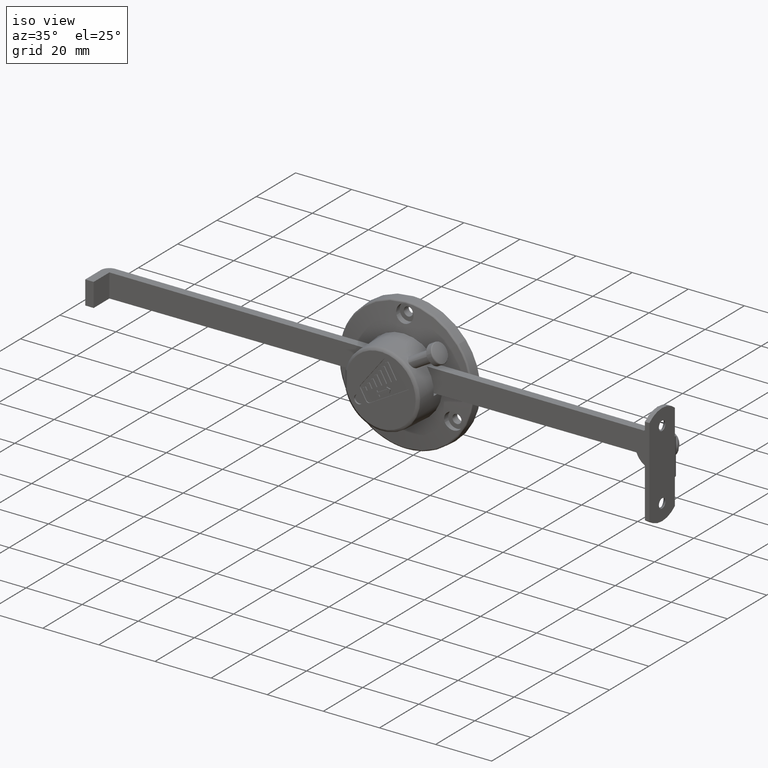
[diagram: clean part render]
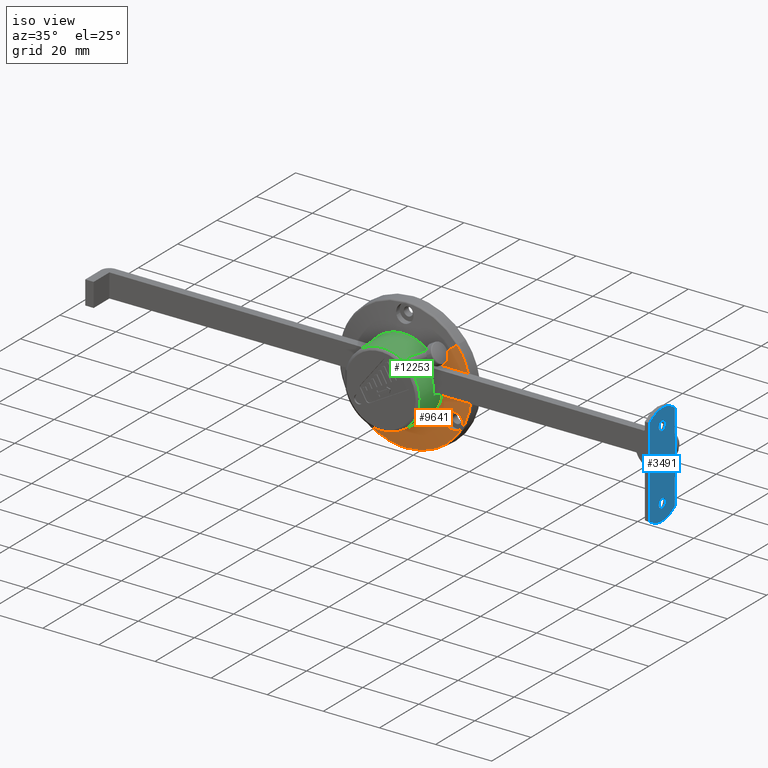
[diagram: same view with three faces highlighted in distinct colors, each labeled with its STEP entity id]
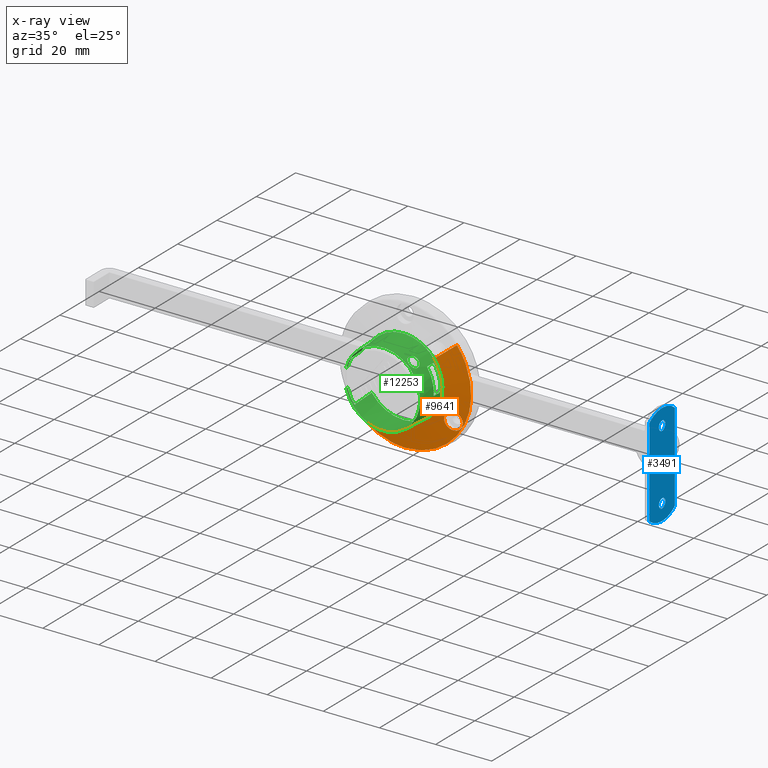
[diagram: x-ray of the same camera — body ghosted, the three highlighted faces saturated]
A machine part, iso view with three faces highlighted in distinct colors.
The next image is the same camera in x-ray (body ghosted, the three faces saturated) — at least one of them is partly hidden behind the body in this view.
Their STEP definitions:

[orange] entity #9641 — the highlighted face is a freeform B-spline surface patch.
#7931=CARTESIAN_POINT('',(18.299272881391150,-3.874858140116030,14.555898898998050));
#7932=VERTEX_POINT('',#7931);
#7946=CARTESIAN_POINT('',(23.352887390695852,-3.874858132988049,-1.174833772036147));
#7947=VERTEX_POINT('',#7946);
#7948=CARTESIAN_POINT('',(23.352887390695848,-3.874858132988049,-1.174833772036147));
#7949=CARTESIAN_POINT('',(23.382420400872537,-3.874858133187921,-0.587788089782845));
#7950=CARTESIAN_POINT('',(23.382420399422919,-3.874858133397013,-5.667377E-009));
#7951=CARTESIAN_POINT('',(23.382420379284948,-3.874858136301691,8.165506730892659));
#7952=CARTESIAN_POINT('',(18.299272881391147,-3.874858140116030,14.555898898998041));
#7960=(BOUNDED_CURVE()B_SPLINE_CURVE(2,(#7948,#7949,#7950,#7951,#7952),.UNSPECIFIED.,.F.,.U.)B_SPLINE_CURVE_WITH_KNOTS((3,2,3),(0.741203951710024,0.750000000000000,0.857863877670425),.UNSPECIFIED.)CURVE()GEOMETRIC_REPRESENTATION_ITEM()RATIONAL_B_SPLINE_CURVE((0.980114737938071,0.989694788414041,1.0,0.873629606701634,0.856305618554457))REPRESENTATION_ITEM(''));
#7961=EDGE_CURVE('',#7947,#7932,#7960,.T.);
#8014=CARTESIAN_POINT('',(-1.136868E-013,-3.874858147016895,-23.382420286659439));
#8015=VERTEX_POINT('',#8014);
#8016=CARTESIAN_POINT('',(-1.136868E-013,-3.874858147016895,-23.382420286659439));
#8017=CARTESIAN_POINT('',(22.235671195848774,-3.874858140002472,-23.382420289567030));
#8018=CARTESIAN_POINT('',(23.352887390695848,-3.874858132988049,-1.174833772036147));
#8026=(BOUNDED_CURVE()B_SPLINE_CURVE(2,(#8016,#8017,#8018),.UNSPECIFIED.,.F.,.U.)B_SPLINE_CURVE_WITH_KNOTS((3,3),(0.500000000000000,0.741203951710024),.UNSPECIFIED.)CURVE()GEOMETRIC_REPRESENTATION_ITEM()RATIONAL_B_SPLINE_CURVE((1.0,0.717411992772506,0.980114737938071))REPRESENTATION_ITEM(''));
#8027=EDGE_CURVE('',#8015,#7947,#8026,.T.);
#8029=CARTESIAN_POINT('',(-18.299272881391349,-3.874858140116030,-14.555898898997970));
#8030=VERTEX_POINT('',#8029);
#8031=CARTESIAN_POINT('',(-18.299272881391349,-3.874858140116030,-14.555898898997972));
#8032=CARTESIAN_POINT('',(-11.278340688014520,-3.874858144283117,-23.382420285363992));
#8033=CARTESIAN_POINT('',(-1.136868E-013,-3.874858147016895,-23.382420286659439));
#8041=(BOUNDED_CURVE()B_SPLINE_CURVE(2,(#8031,#8032,#8033),.UNSPECIFIED.,.F.,.U.)B_SPLINE_CURVE_WITH_KNOTS((3,3),(0.357863877670426,0.500000000000000),.UNSPECIFIED.)CURVE()GEOMETRIC_REPRESENTATION_ITEM()RATIONAL_B_SPLINE_CURVE((0.856305618554456,0.833477174484913,1.0))REPRESENTATION_ITEM(''));
#8042=EDGE_CURVE('',#8030,#8015,#8041,.T.);
#8900=CARTESIAN_POINT('',(14.431088293362830,-4.500571606496708,-11.123061222129820));
#8901=VERTEX_POINT('',#8900);
#8907=CARTESIAN_POINT('',(19.502574634162180,-3.920585017414080,-12.201950393274309));
#8908=VERTEX_POINT('',#8907);
#8909=CARTESIAN_POINT('',(14.431088293362830,-4.500571606496708,-11.123061222129820));
#8910=CARTESIAN_POINT('',(14.438086775236989,-4.498567821271893,-11.141059975570929));
#8911=CARTESIAN_POINT('',(14.445258270695881,-4.496550195450925,-11.159008061743251));
#8912=CARTESIAN_POINT('',(14.491106425207400,-4.483869511903593,-11.270731778925271));
#8913=CARTESIAN_POINT('',(14.534668619765370,-4.472780992338392,-11.363593824822800));
#8914=CARTESIAN_POINT('',(14.629833545005960,-4.450284211378511,-11.542906540077190));
#8915=CARTESIAN_POINT('',(14.681504144085430,-4.438847302672460,-11.629658418892520));
#8916=CARTESIAN_POINT('',(14.848494088116540,-4.404014423641175,-11.881408292320019));
#8917=CARTESIAN_POINT('',(14.975675098708400,-4.380103657438899,-12.037983562033769));
#8918=CARTESIAN_POINT('',(15.263013487985051,-4.330947316508679,-12.327731960950709));
#8919=CARTESIAN_POINT('',(15.418511653127670,-4.306499763204070,-12.456194772458829));
#8920=CARTESIAN_POINT('',(15.668631722232901,-4.270044051558249,-12.625151420419000));
#8921=CARTESIAN_POINT('',(15.754845846796909,-4.257926330014630,-12.677492695705730));
#8922=CARTESIAN_POINT('',(15.933081256589711,-4.233753902161966,-12.774042703764421));
#8923=CARTESIAN_POINT('',(16.025474054527781,-4.221655836216594,-12.818358840515179));
#8924=CARTESIAN_POINT('',(16.305668097000929,-4.186199460076757,-12.936180765184639));
#8925=CARTESIAN_POINT('',(16.498027593282352,-4.163447185211189,-12.995718375736940));
#8926=CARTESIAN_POINT('',(16.794823825492472,-4.130537341126605,-13.056771920459180));
#8927=CARTESIAN_POINT('',(16.895302644547439,-4.119754953320412,-13.072398111440179));
#8928=CARTESIAN_POINT('',(17.098467924256010,-4.098663727565510,-13.093724059788910));
#8929=CARTESIAN_POINT('',(17.199778133910410,-4.088496504431221,-13.099295532009370));
#8930=CARTESIAN_POINT('',(17.502914460054029,-4.059061954574640,-13.101220555642620));
#8931=CARTESIAN_POINT('',(17.703953803945360,-4.040852393374965,-13.082923750286049));
#8932=CARTESIAN_POINT('',(18.003887713771530,-4.015570982275603,-13.025451106549900));
#8933=CARTESIAN_POINT('',(18.103820515509359,-4.007471045647740,-13.001125630393689));
#8934=CARTESIAN_POINT('',(18.298752046319610,-3.992293535384749,-12.943360729381389));
#8935=CARTESIAN_POINT('',(18.489835746032071,-3.978043288209365,-12.876331291304121));
#8936=CARTESIAN_POINT('',(18.673348405962710,-3.965576613050713,-12.791079666587750));
#8937=CARTESIAN_POINT('',(18.808108251151928,-3.956889577843859,-12.720224537772861));
#8938=CARTESIAN_POINT('',(18.852548243295399,-3.954104605419764,-12.695451383722020));
#8939=CARTESIAN_POINT('',(18.940451702487540,-3.948757698300635,-12.643555918285820));
#8940=CARTESIAN_POINT('',(18.984011052196308,-3.946190386118030,-12.616368824739840));
#8941=CARTESIAN_POINT('',(19.198000377276180,-3.933993600092465,-12.475291335145110));
#8942=CARTESIAN_POINT('',(19.356616027186870,-3.926284244382365,-12.346591005024990));
#8943=CARTESIAN_POINT('',(19.502574634162180,-3.920585017414080,-12.201950393274309));
#8944=B_SPLINE_CURVE_WITH_KNOTS('',3,(#8909,#8910,#8911,#8912,#8913,#8914,#8915,#8916,#8917,#8918,#8919,#8920,#8921,#8922,#8923,#8924,#8925,#8926,#8927,#8928,#8929,#8930,#8931,#8932,#8933,#8934,#8935,#8936,#8937,#8938,#8939,#8940,#8941,#8942,#8943),.UNSPECIFIED.,.F.,.U.,(4,2,2,2,2,2,2,2,2,2,2,2,2,1,2,2,2,4),(0.684519524175808,0.687500000000020,0.703125000000019,0.718750000000019,0.750000000000017,0.781250000000016,0.796875000000015,0.812500000000015,0.843750000000012,0.859375000000011,0.875000000000010,0.906250000000007,0.921875000000006,0.937500000000005,0.953125000000003,0.960937500000003,0.968750000000002,1.0),.UNSPECIFIED.);
#8945=EDGE_CURVE('',#8901,#8908,#8944,.T.);
#8947=CARTESIAN_POINT('',(20.209926327969249,-4.033510248172043,-8.876939372908845));
#8948=VERTEX_POINT('',#8947);
#8949=CARTESIAN_POINT('',(19.502574634162180,-3.920585017414080,-12.201950393274309));
#8950=CARTESIAN_POINT('',(19.648533261108039,-3.914885790445869,-12.057309773755600));
#8951=CARTESIAN_POINT('',(19.777834614097291,-3.911352451607674,-11.900696080904179));
#8952=CARTESIAN_POINT('',(19.947792813222950,-3.909136971632206,-11.648529478250170));
#8953=CARTESIAN_POINT('',(20.000416726885220,-3.908916882595973,-11.561578140415021));
#8954=CARTESIAN_POINT('',(20.073165695817838,-3.909382288179299,-11.426704167491360));
#8955=CARTESIAN_POINT('',(20.096432290505390,-3.909671328550475,-11.380897178597881));
#8956=CARTESIAN_POINT('',(20.140612167048911,-3.910516612709154,-11.288272136187810));
#8957=CARTESIAN_POINT('',(20.161464014977401,-3.911070879746978,-11.241598164105080));
#8958=CARTESIAN_POINT('',(20.259657544921300,-3.914488242094064,-11.006457496818481));
#8959=CARTESIAN_POINT('',(20.318975904868299,-3.919268798280095,-10.812729067296001));
#8960=CARTESIAN_POINT('',(20.369267158481311,-3.927822284798149,-10.563604824624161));
#8961=CARTESIAN_POINT('',(20.378121767096118,-3.929663159311615,-10.513428639276681));
#8962=CARTESIAN_POINT('',(20.393384226208038,-3.933611052301281,-10.412362111978609));
#8963=CARTESIAN_POINT('',(20.399803464973850,-3.935724595116878,-10.361329081592411));
#8964=CARTESIAN_POINT('',(20.415179916773621,-3.942413700262370,-10.208532708199440));
#8965=CARTESIAN_POINT('',(20.420318792723251,-3.947338548868202,-10.106945135218719));
#8966=CARTESIAN_POINT('',(20.420870392755969,-3.963489547957041,-9.802988276560500));
#8967=CARTESIAN_POINT('',(20.401559493425321,-3.976077478803051,-9.601417093647259));
#8968=CARTESIAN_POINT('',(20.352203858907220,-3.994241227059753,-9.350825624430138));
#8969=CARTESIAN_POINT('',(20.341034851430919,-3.998003140942178,-9.300701199778128));
#8970=CARTESIAN_POINT('',(20.316384889903741,-4.005694440863407,-9.201674980296666));
#8971=CARTESIAN_POINT('',(20.302883178191031,-4.009632598716347,-9.152646370436386));
#8972=CARTESIAN_POINT('',(20.265009281755269,-4.020046880680951,-9.027187961666680));
#8973=CARTESIAN_POINT('',(20.238898520869579,-4.026661716046056,-8.951474183734206));
#8974=CARTESIAN_POINT('',(20.209926327969249,-4.033510248172043,-8.876939372908845));
#8975=B_SPLINE_CURVE_WITH_KNOTS('',3,(#8949,#8950,#8951,#8952,#8953,#8954,#8955,#8956,#8957,#8958,#8959,#8960,#8961,#8962,#8963,#8964,#8965,#8966,#8967,#8968,#8969,#8970,#8971,#8972,#8973,#8974),.UNSPECIFIED.,.F.,.U.,(4,2,2,2,2,2,2,2,2,2,2,2,4),(0.0,0.031250000000003,0.046875000000004,0.054687500000005,0.062500000000006,0.093750000000008,0.101562500000008,0.109375000000009,0.125000000000010,0.156250000000012,0.164062500000012,0.171875000000012,0.184249717683070),.UNSPECIFIED.);
#8976=EDGE_CURVE('',#8908,#8948,#8975,.T.);
#9006=CARTESIAN_POINT('',(15.139188684851680,-4.644947450206199,-7.797309437276971));
#9007=VERTEX_POINT('',#9006);
#9008=CARTESIAN_POINT('',(20.209926327969249,-4.033510248172043,-8.876939372908845));
#9009=CARTESIAN_POINT('',(20.202316638019148,-4.035309049844632,-8.857362425785670));
#9010=CARTESIAN_POINT('',(20.156978701215500,-4.045848811351445,-8.744146045863250));
#9011=CARTESIAN_POINT('',(20.105003433160000,-4.056933991191686,-8.633664691502080));
#9012=CARTESIAN_POINT('',(20.033544785936130,-4.071284029502899,-8.499333034172688));
#9013=CARTESIAN_POINT('',(20.008569732724819,-4.076165138274983,-8.455032223304588));
#9014=CARTESIAN_POINT('',(19.956266371551621,-4.086129288418094,-8.367401101263035));
#9015=CARTESIAN_POINT('',(19.928954058027450,-4.091208456180586,-8.324114259502283));
#9016=CARTESIAN_POINT('',(19.788020209382850,-4.116836551373139,-8.112472452486234));
#9017=CARTESIAN_POINT('',(19.660296788228131,-4.138290811664811,-7.956446964883045));
#9018=CARTESIAN_POINT('',(19.446787509470720,-4.171982951093662,-7.741878162272487));
#9019=CARTESIAN_POINT('',(19.371937732535649,-4.183466871366306,-7.673623161276843));
#9020=CARTESIAN_POINT('',(19.214645864133121,-4.206973721837972,-7.543857691865693));
#9021=CARTESIAN_POINT('',(19.133095247292982,-4.218862064487584,-7.483114604439020));
#9022=CARTESIAN_POINT('',(18.881770896446501,-4.254679386530743,-7.314259569592966));
#9023=CARTESIAN_POINT('',(18.704645745737871,-4.278872259414805,-7.218782607874357));
#9024=CARTESIAN_POINT('',(18.424458961799171,-4.315676574742255,-7.101458396372965));
#9025=CARTESIAN_POINT('',(18.328152533342621,-4.328089358414307,-7.066585059600762));
#9026=CARTESIAN_POINT('',(18.134399470862110,-4.352598429072517,-7.007032990434522));
#9027=CARTESIAN_POINT('',(18.036647101816818,-4.364737124653080,-6.982174664133241));
#9028=CARTESIAN_POINT('',(17.740817136356359,-4.400803166266088,-6.922039216300001));
#9029=CARTESIAN_POINT('',(17.540192412865078,-4.424387313970985,-6.901059518222835));
#9030=CARTESIAN_POINT('',(17.131816092106568,-4.470469931926417,-6.899018078530399));
#9031=CARTESIAN_POINT('',(16.930664473520441,-4.492221372819332,-6.918008163621056));
#9032=CARTESIAN_POINT('',(16.633716287225180,-4.522789063806180,-6.975354580602211));
#9033=CARTESIAN_POINT('',(16.535512147743670,-4.532634886873273,-6.999315696173759));
#9034=CARTESIAN_POINT('',(16.340695220649181,-4.551591154982159,-7.057162641655013));
#9035=CARTESIAN_POINT('',(16.243714314558201,-4.560732323146386,-7.091246029597113));
#9036=CARTESIAN_POINT('',(15.961330735144180,-4.586405749807120,-7.206440463903276));
#9037=CARTESIAN_POINT('',(15.782607505416500,-4.601388551751535,-7.300743186087624));
#9038=CARTESIAN_POINT('',(15.528698336787240,-4.620482942035550,-7.468261611049332));
#9039=CARTESIAN_POINT('',(15.446291472417210,-4.626290504651335,-7.528597856500693));
#9040=CARTESIAN_POINT('',(15.287057415301019,-4.636653006044516,-7.657865327016100));
#9041=CARTESIAN_POINT('',(15.211269734124061,-4.641141766408724,-7.725927737302262));
#9042=CARTESIAN_POINT('',(15.139188684851680,-4.644947450206199,-7.797309437276971));
#9043=B_SPLINE_CURVE_WITH_KNOTS('',3,(#9008,#9009,#9010,#9011,#9012,#9013,#9014,#9015,#9016,#9017,#9018,#9019,#9020,#9021,#9022,#9023,#9024,#9025,#9026,#9027,#9028,#9029,#9030,#9031,#9032,#9033,#9034,#9035,#9036,#9037,#9038,#9039,#9040,#9041,#9042),.UNSPECIFIED.,.F.,.U.,(4,1,2,2,2,2,2,2,2,2,2,2,2,2,2,2,2,4),(0.184249717683071,0.187500000000013,0.203125000000013,0.210937500000014,0.218750000000014,0.250000000000015,0.265625000000015,0.281250000000015,0.312500000000017,0.328125000000017,0.343750000000017,0.375000000000019,0.406250000000020,0.421875000000021,0.437500000000021,0.468750000000022,0.484375000000022,0.500000000000023),.UNSPECIFIED.);
#9044=EDGE_CURVE('',#8948,#9007,#9043,.T.);
#9046=CARTESIAN_POINT('',(15.139188684851680,-4.644947450206199,-7.797309437276971));
#9047=CARTESIAN_POINT('',(14.995026675198011,-4.652558817801347,-7.940072802661709));
#9048=CARTESIAN_POINT('',(14.865585375483910,-4.657453876043569,-8.096018692140182));
#9049=CARTESIAN_POINT('',(14.722605210541090,-4.660024425873276,-8.307808723087172));
#9050=CARTESIAN_POINT('',(14.694886205984210,-4.660360011653927,-8.351140455948228));
#9051=CARTESIAN_POINT('',(14.641788798855210,-4.660663125750512,-8.438881575047036));
#9052=CARTESIAN_POINT('',(14.616431587608769,-4.660631742288376,-8.483239073444429));
#9053=CARTESIAN_POINT('',(14.543864952698820,-4.659999509282713,-8.617743992333379));
#9054=CARTESIAN_POINT('',(14.456439289924500,-4.657723698314023,-8.800896798726326));
#9055=CARTESIAN_POINT('',(14.387358734729730,-4.652644529439531,-8.991547152901218));
#9056=CARTESIAN_POINT('',(14.342510479655919,-4.647782909583049,-9.137380555404986));
#9057=CARTESIAN_POINT('',(14.328723489659939,-4.645986745539757,-9.186466808970200));
#9058=CARTESIAN_POINT('',(14.303514225069460,-4.642039853543247,-9.285605901713186));
#9059=CARTESIAN_POINT('',(14.292073886528410,-4.639883219724990,-9.335773490527611));
#9060=CARTESIAN_POINT('',(14.241415251883240,-4.628328110470863,-9.586435685084652));
#9061=CARTESIAN_POINT('',(14.221148044467540,-4.616583578893937,-9.787956667207258));
#9062=CARTESIAN_POINT('',(14.220212211841170,-4.595512375824035,-10.091691232910479));
#9063=CARTESIAN_POINT('',(14.224846940046620,-4.587908942986262,-10.193180052850909));
#9064=CARTESIAN_POINT('',(14.239432013807599,-4.575635878891916,-10.345791410548239));
#9065=CARTESIAN_POINT('',(14.245574202072630,-4.571401498550484,-10.396693749080830));
#9066=CARTESIAN_POINT('',(14.260266910015620,-4.562741423941994,-10.497501582398570));
#9067=CARTESIAN_POINT('',(14.268829086772440,-4.558304560814413,-10.547548482479410));
#9068=CARTESIAN_POINT('',(14.313893081648279,-4.537337876709729,-10.777070260408889));
#9069=CARTESIAN_POINT('',(14.364708243100280,-4.519577315046714,-10.952344840979199));
#9070=CARTESIAN_POINT('',(14.431088293362830,-4.500571606496708,-11.123061222129820));
#9071=B_SPLINE_CURVE_WITH_KNOTS('',3,(#9046,#9047,#9048,#9049,#9050,#9051,#9052,#9053,#9054,#9055,#9056,#9057,#9058,#9059,#9060,#9061,#9062,#9063,#9064,#9065,#9066,#9067,#9068,#9069,#9070),.UNSPECIFIED.,.F.,.U.,(4,2,2,2,1,2,2,2,2,2,2,2,4),(0.500000000000023,0.531250000000023,0.539062500000023,0.546875000000023,0.562500000000022,0.578125000000022,0.585937500000022,0.593750000000022,0.625000000000022,0.640625000000021,0.648437500000021,0.656250000000021,0.684519524175808),.UNSPECIFIED.);
#9072=EDGE_CURVE('',#9007,#8901,#9071,.T.);
#9097=CARTESIAN_POINT('',(-14.749868061871680,-4.424597949591257,-11.732574594027280));
#9098=VERTEX_POINT('',#9097);
#9140=CARTESIAN_POINT('',(-16.210609450006110,-4.198355040236008,-12.894500901251190));
#9141=VERTEX_POINT('',#9140);
#9180=CARTESIAN_POINT('',(-15.121227511211350,-4.355202720213899,-12.184757983089520));
#9181=VERTEX_POINT('',#9180);
#9182=CARTESIAN_POINT('',(-16.210609450006110,-4.198355040236008,-12.894500901251190));
#9183=CARTESIAN_POINT('',(-16.181520443154831,-4.201956164360122,-12.883346045102741));
#9184=CARTESIAN_POINT('',(-16.059171185500940,-4.217260093588479,-12.834297597582349));
#9185=CARTESIAN_POINT('',(-15.940161382326171,-4.232817522409857,-12.777560563722441));
#9186=CARTESIAN_POINT('',(-15.806769281247600,-4.250873645572317,-12.705761440044880));
#9187=CARTESIAN_POINT('',(-15.762798340186480,-4.256931142330929,-12.680693530014850));
#9188=CARTESIAN_POINT('',(-15.675858646175231,-4.269125989308106,-12.628251442176589));
#9189=CARTESIAN_POINT('',(-15.632795440381299,-4.275277263669855,-12.600811397857250));
#9190=CARTESIAN_POINT('',(-15.421494165018400,-4.306027077251470,-12.458707977561881));
#9191=CARTESIAN_POINT('',(-15.265035671545000,-4.330619767864624,-12.329522082059979));
#9192=CARTESIAN_POINT('',(-15.121227511211350,-4.355202720213899,-12.184757983089520));
#9193=B_SPLINE_CURVE_WITH_KNOTS('',3,(#9182,#9183,#9184,#9185,#9186,#9187,#9188,#9189,#9190,#9191,#9192),.UNSPECIFIED.,.F.,.U.,(4,1,2,2,2,4),(0.932667476294536,0.937499999999998,0.953124999999999,0.960937499999999,0.968749999999999,1.0),.UNSPECIFIED.);
#9194=EDGE_CURVE('',#9141,#9181,#9193,.T.);
#9196=CARTESIAN_POINT('',(-15.121227511211350,-4.355202720213899,-12.184757983089520));
#9197=CARTESIAN_POINT('',(-14.982215393229330,-4.378965813576365,-12.044821902239940));
#9198=CARTESIAN_POINT('',(-14.858624458214271,-4.402103975739614,-11.893957568170670));
#9199=CARTESIAN_POINT('',(-14.749868061871680,-4.424597949591257,-11.732574594027280));
#9200=B_SPLINE_CURVE_WITH_KNOTS('',3,(#9196,#9197,#9198,#9199),.UNSPECIFIED.,.F.,.U.,(4,4),(0.0,0.030207792336529),.UNSPECIFIED.);
#9201=EDGE_CURVE('',#9181,#9098,#9200,.T.);
#9513=CARTESIAN_POINT('',(-16.210609450006110,-4.198355040236008,-12.894500901251190));
#9514=CARTESIAN_POINT('',(-18.299272881391349,-3.874858140116030,-14.555898898997970));
#9515=QUASI_UNIFORM_CURVE('',1,(#9513,#9514),.UNSPECIFIED.,.F.,.U.);
#9516=EDGE_CURVE('',#9141,#8030,#9515,.T.);
#9522=CARTESIAN_POINT('',(-10.996444435348019,-5.005936603998247,-8.746966860166657));
#9523=VERTEX_POINT('',#9522);
#9524=CARTESIAN_POINT('',(-10.996444435348019,-5.005936603998247,-8.746966860166657));
#9525=CARTESIAN_POINT('',(-14.749868061871680,-4.424597949591257,-11.732574594027280));
#9526=QUASI_UNIFORM_CURVE('',1,(#9524,#9525),.UNSPECIFIED.,.F.,.U.);
#9527=EDGE_CURVE('',#9523,#9098,#9526,.T.);
#9546=CARTESIAN_POINT('',(10.996444435347801,-5.005936603998247,8.746966860166765));
#9547=VERTEX_POINT('',#9546);
#9561=CARTESIAN_POINT('',(10.996444435347801,-5.005936603998247,8.746966860166765));
#9562=CARTESIAN_POINT('',(18.299272881391150,-3.874858140116030,14.555898898998050));
#9563=QUASI_UNIFORM_CURVE('',1,(#9561,#9562),.UNSPECIFIED.,.F.,.U.);
#9564=EDGE_CURVE('',#9547,#7932,#9563,.T.);
#9577=CARTESIAN_POINT('',(10.813873723197201,-5.034213565775300,8.601743557741653));
#9578=CARTESIAN_POINT('',(19.415617280938797,-5.034213565775299,-2.212130165455665));
#9579=CARTESIAN_POINT('',(8.601743557741482,-5.034213565775300,-10.813873723197259));
#9580=CARTESIAN_POINT('',(-2.212130165455836,-5.034213565775299,-19.415617280938864));
#9581=CARTESIAN_POINT('',(-10.813873723197430,-5.034213565775300,-8.601743557741539));
#9582=CARTESIAN_POINT('',(18.486407914135249,-3.845874247168367,14.704752825075710));
#9583=CARTESIAN_POINT('',(33.191160739210915,-3.845874247168367,-3.781655089059655));
#9584=CARTESIAN_POINT('',(14.704752825075539,-3.845874247168367,-18.486407914135309));
#9585=CARTESIAN_POINT('',(-3.781655089059827,-3.845874247168367,-33.191160739210972));
#9586=CARTESIAN_POINT('',(-18.486407914135480,-3.845874247168367,-14.704752825075600));
#9594=(BOUNDED_SURFACE()B_SPLINE_SURFACE(2,1,((#9577,#9582),(#9578,#9583),(#9579,#9584),(#9580,#9585),(#9581,#9586)),.UNSPECIFIED.,.F.,.F.,.U.)B_SPLINE_SURFACE_WITH_KNOTS((3,2,3),(2,2),(0.0,39.137444763639088,78.274889527278177),(0.0,9.875558382411903),.UNSPECIFIED.)GEOMETRIC_REPRESENTATION_ITEM()RATIONAL_B_SPLINE_SURFACE(((1.0,1.0),(0.707106781186548,0.707106781186548),(1.0,1.0),(0.707106781186548,0.707106781186548),(1.0,1.0)))REPRESENTATION_ITEM('')SURFACE());
#9595=ORIENTED_EDGE('',*,*,#8042,.T.);
#9596=ORIENTED_EDGE('',*,*,#8027,.T.);
#9597=ORIENTED_EDGE('',*,*,#7961,.T.);
#9598=ORIENTED_EDGE('',*,*,#9564,.F.);
#9599=CARTESIAN_POINT('',(-1.136868E-013,-5.005936604000000,-14.051022008101080));
#9600=VERTEX_POINT('',#9599);
#9601=CARTESIAN_POINT('',(-1.136868E-013,-5.005936604000000,-14.051022008101080));
#9602=CARTESIAN_POINT('',(14.051022008103752,-5.005936603999579,-14.051022008098908));
#9603=CARTESIAN_POINT('',(14.051022008109410,-5.005936603998701,6.724029E-012));
#9604=CARTESIAN_POINT('',(14.051022008111387,-5.005936603998396,4.906836551072217));
#9605=CARTESIAN_POINT('',(10.996444435347797,-5.005936603998247,8.746966860166765));
#9613=(BOUNDED_CURVE()B_SPLINE_CURVE(2,(#9601,#9602,#9603,#9604,#9605),.UNSPECIFIED.,.F.,.U.)B_SPLINE_CURVE_WITH_KNOTS((3,2,3),(0.500000000000000,0.750000000000000,0.857863877396917),.UNSPECIFIED.)CURVE()GEOMETRIC_REPRESENTATION_ITEM()RATIONAL_B_SPLINE_CURVE((1.0,0.707106781186548,1.0,0.873629607022070,0.856305618642313))REPRESENTATION_ITEM(''));
#9614=EDGE_CURVE('',#9600,#9547,#9613,.T.);
#9615=ORIENTED_EDGE('',*,*,#9614,.F.);
#9616=CARTESIAN_POINT('',(-10.996444435348023,-5.005936603998247,-8.746966860166657));
#9617=CARTESIAN_POINT('',(-6.777408466368278,-5.005936603999124,-14.051022008105580));
#9618=CARTESIAN_POINT('',(-1.136868E-013,-5.005936604000000,-14.051022008101080));
#9626=(BOUNDED_CURVE()B_SPLINE_CURVE(2,(#9616,#9617,#9618),.UNSPECIFIED.,.F.,.U.)B_SPLINE_CURVE_WITH_KNOTS((3,3),(0.357863877396917,0.500000000000000),.UNSPECIFIED.)CURVE()GEOMETRIC_REPRESENTATION_ITEM()RATIONAL_B_SPLINE_CURVE((0.856305618642313,0.833477174164478,1.0))REPRESENTATION_ITEM(''));
#9627=EDGE_CURVE('',#9523,#9600,#9626,.T.);
#9628=ORIENTED_EDGE('',*,*,#9627,.F.);
#9629=ORIENTED_EDGE('',*,*,#9527,.T.);
#9630=ORIENTED_EDGE('',*,*,#9201,.F.);
#9631=ORIENTED_EDGE('',*,*,#9194,.F.);
#9632=ORIENTED_EDGE('',*,*,#9516,.T.);
#9633=EDGE_LOOP('',(#9595,#9596,#9597,#9598,#9615,#9628,#9629,#9630,#9631,#9632));
#9634=FACE_OUTER_BOUND('',#9633,.T.);
#9635=ORIENTED_EDGE('',*,*,#9072,.F.);
#9636=ORIENTED_EDGE('',*,*,#9044,.F.);
#9637=ORIENTED_EDGE('',*,*,#8976,.F.);
#9638=ORIENTED_EDGE('',*,*,#8945,.F.);
#9639=EDGE_LOOP('',(#9635,#9636,#9637,#9638));
#9640=FACE_BOUND('',#9639,.T.);
#9641=ADVANCED_FACE('',(#9634,#9640),#9594,.T.);

[blue] entity #3491 — the highlighted face is a freeform B-spline surface patch.
#2538=CARTESIAN_POINT('',(101.599998772099990,-16.755086399424830,16.579457509069641));
#2539=VERTEX_POINT('',#2538);
#2545=CARTESIAN_POINT('',(101.599998772099990,-18.399999999999999,18.100000000045100));
#2546=VERTEX_POINT('',#2545);
#2547=CARTESIAN_POINT('',(101.599998772099990,-18.399999999999999,18.100000000045100));
#2548=CARTESIAN_POINT('',(101.599998772100010,-16.874755689762541,18.100000000045100));
#2549=CARTESIAN_POINT('',(101.599998772100020,-16.755086399424840,16.579457509069645));
#2557=(BOUNDED_CURVE()B_SPLINE_CURVE(2,(#2547,#2548,#2549),.UNSPECIFIED.,.F.,.U.)B_SPLINE_CURVE_WITH_KNOTS((3,3),(0.0,0.236331300520882),.UNSPECIFIED.)CURVE()GEOMETRIC_REPRESENTATION_ITEM()RATIONAL_B_SPLINE_CURVE((1.0,0.723120658736278,0.969723355938320))REPRESENTATION_ITEM(''));
#2558=EDGE_CURVE('',#2546,#2539,#2557,.T.);
#2560=CARTESIAN_POINT('',(101.599998772099990,-20.044913600575160,16.320542491020550));
#2561=VERTEX_POINT('',#2560);
#2562=CARTESIAN_POINT('',(101.599998772099990,-20.044913600575164,16.320542491020550));
#2563=CARTESIAN_POINT('',(101.599998772099990,-20.050000000000001,16.385171322943151));
#2564=CARTESIAN_POINT('',(101.599998772099990,-20.050000000000001,16.450000000045101));
#2565=CARTESIAN_POINT('',(101.599998772100010,-20.050000000000001,18.100000000045100));
#2566=CARTESIAN_POINT('',(101.599998772099990,-18.399999999999999,18.100000000045100));
#2574=(BOUNDED_CURVE()B_SPLINE_CURVE(2,(#2562,#2563,#2564,#2565,#2566),.UNSPECIFIED.,.F.,.U.)B_SPLINE_CURVE_WITH_KNOTS((3,2,3),(0.736331300520881,0.750000000000000,1.0),.UNSPECIFIED.)CURVE()GEOMETRIC_REPRESENTATION_ITEM()RATIONAL_B_SPLINE_CURVE((0.969723355938319,0.983986122450269,1.0,0.707106781186548,1.0))REPRESENTATION_ITEM(''));
#2575=EDGE_CURVE('',#2561,#2546,#2574,.T.);
#2681=CARTESIAN_POINT('',(101.599998772099990,-18.399999999999999,14.800000000045101));
#2682=VERTEX_POINT('',#2681);
#2683=CARTESIAN_POINT('',(101.599998772099990,-18.399999999999999,14.800000000045101));
#2684=CARTESIAN_POINT('',(101.599998772100020,-19.925244310237460,14.800000000045104));
#2685=CARTESIAN_POINT('',(101.599998772099990,-20.044913600575160,16.320542491020547));
#2693=(BOUNDED_CURVE()B_SPLINE_CURVE(2,(#2683,#2684,#2685),.UNSPECIFIED.,.F.,.U.)B_SPLINE_CURVE_WITH_KNOTS((3,3),(0.500000000000000,0.736331300520881),.UNSPECIFIED.)CURVE()GEOMETRIC_REPRESENTATION_ITEM()RATIONAL_B_SPLINE_CURVE((1.0,0.723120658736279,0.969723355938319))REPRESENTATION_ITEM(''));
#2694=EDGE_CURVE('',#2682,#2561,#2693,.T.);
#2696=CARTESIAN_POINT('',(101.599998772100010,-16.755086399424833,16.579457509069641));
#2697=CARTESIAN_POINT('',(101.599998772100010,-16.750000000000004,16.514828677147040));
#2698=CARTESIAN_POINT('',(101.599998772099990,-16.750000000000000,16.450000000045101));
#2699=CARTESIAN_POINT('',(101.599998772100010,-16.750000000000000,14.800000000045094));
#2700=CARTESIAN_POINT('',(101.599998772099990,-18.399999999999999,14.800000000045101));
#2708=(BOUNDED_CURVE()B_SPLINE_CURVE(2,(#2696,#2697,#2698,#2699,#2700),.UNSPECIFIED.,.F.,.U.)B_SPLINE_CURVE_WITH_KNOTS((3,2,3),(0.236331300520882,0.250000000000000,0.500000000000000),.UNSPECIFIED.)CURVE()GEOMETRIC_REPRESENTATION_ITEM()RATIONAL_B_SPLINE_CURVE((0.969723355938320,0.983986122450270,1.0,0.707106781186548,1.0))REPRESENTATION_ITEM(''));
#2709=EDGE_CURVE('',#2539,#2682,#2708,.T.);
#2874=CARTESIAN_POINT('',(101.599998772099990,-16.755086399424830,-8.420542490930364));
#2875=VERTEX_POINT('',#2874);
#2881=CARTESIAN_POINT('',(101.599998772099990,-18.399999999999999,-6.899999999954909));
#2882=VERTEX_POINT('',#2881);
#2883=CARTESIAN_POINT('',(101.599998772099990,-18.399999999999999,-6.899999999954909));
#2884=CARTESIAN_POINT('',(101.599998772099990,-16.874755689762534,-6.899999999954908));
#2885=CARTESIAN_POINT('',(101.599998772100010,-16.755086399424837,-8.420542490930362));
#2893=(BOUNDED_CURVE()B_SPLINE_CURVE(2,(#2883,#2884,#2885),.UNSPECIFIED.,.F.,.U.)B_SPLINE_CURVE_WITH_KNOTS((3,3),(0.0,0.236331300520882),.UNSPECIFIED.)CURVE()GEOMETRIC_REPRESENTATION_ITEM()RATIONAL_B_SPLINE_CURVE((1.0,0.723120658736279,0.969723355938319))REPRESENTATION_ITEM(''));
#2894=EDGE_CURVE('',#2882,#2875,#2893,.T.);
#2896=CARTESIAN_POINT('',(101.599998772099990,-20.044913600575160,-8.679457508979454));
#2897=VERTEX_POINT('',#2896);
#2898=CARTESIAN_POINT('',(101.599998772099990,-20.044913600575168,-8.679457508979455));
#2899=CARTESIAN_POINT('',(101.599998772099990,-20.050000000000001,-8.614828677056856));
#2900=CARTESIAN_POINT('',(101.599998772099990,-20.050000000000001,-8.549999999954910));
#2901=CARTESIAN_POINT('',(101.599998772100010,-20.050000000000001,-6.899999999954909));
#2902=CARTESIAN_POINT('',(101.599998772099990,-18.399999999999999,-6.899999999954909));
#2910=(BOUNDED_CURVE()B_SPLINE_CURVE(2,(#2898,#2899,#2900,#2901,#2902),.UNSPECIFIED.,.F.,.U.)B_SPLINE_CURVE_WITH_KNOTS((3,2,3),(0.736331300520882,0.750000000000000,1.0),.UNSPECIFIED.)CURVE()GEOMETRIC_REPRESENTATION_ITEM()RATIONAL_B_SPLINE_CURVE((0.969723355938320,0.983986122450269,1.0,0.707106781186548,1.0))REPRESENTATION_ITEM(''));
#2911=EDGE_CURVE('',#2897,#2882,#2910,.T.);
#3017=CARTESIAN_POINT('',(101.599998772099990,-18.399999999999999,-10.199999999954910));
#3018=VERTEX_POINT('',#3017);
#3019=CARTESIAN_POINT('',(101.599998772099990,-18.399999999999999,-10.199999999954910));
#3020=CARTESIAN_POINT('',(101.599998772100020,-19.925244310237471,-10.199999999954910));
#3021=CARTESIAN_POINT('',(101.599998772099990,-20.044913600575168,-8.679457508979455));
#3029=(BOUNDED_CURVE()B_SPLINE_CURVE(2,(#3019,#3020,#3021),.UNSPECIFIED.,.F.,.U.)B_SPLINE_CURVE_WITH_KNOTS((3,3),(0.500000000000000,0.736331300520882),.UNSPECIFIED.)CURVE()GEOMETRIC_REPRESENTATION_ITEM()RATIONAL_B_SPLINE_CURVE((1.0,0.723120658736278,0.969723355938320))REPRESENTATION_ITEM(''));
#3030=EDGE_CURVE('',#3018,#2897,#3029,.T.);
#3032=CARTESIAN_POINT('',(101.599998772100010,-16.755086399424837,-8.420542490930362));
#3033=CARTESIAN_POINT('',(101.599998772100010,-16.750000000000007,-8.485171322852962));
#3034=CARTESIAN_POINT('',(101.599998772099990,-16.750000000000000,-8.549999999954910));
#3035=CARTESIAN_POINT('',(101.599998772100010,-16.750000000000000,-10.199999999954910));
#3036=CARTESIAN_POINT('',(101.599998772099990,-18.399999999999999,-10.199999999954910));
#3044=(BOUNDED_CURVE()B_SPLINE_CURVE(2,(#3032,#3033,#3034,#3035,#3036),.UNSPECIFIED.,.F.,.U.)B_SPLINE_CURVE_WITH_KNOTS((3,2,3),(0.236331300520882,0.250000000000000,0.500000000000000),.UNSPECIFIED.)CURVE()GEOMETRIC_REPRESENTATION_ITEM()RATIONAL_B_SPLINE_CURVE((0.969723355938319,0.983986122450269,1.0,0.707106781186548,1.0))REPRESENTATION_ITEM(''));
#3045=EDGE_CURVE('',#2875,#3018,#3044,.T.);
#3414=CARTESIAN_POINT('',(101.599998772099990,-11.250650285999930,-16.123174852436570));
#3415=CARTESIAN_POINT('',(101.599998772099990,-25.549350879287299,-16.123174852436570));
#3416=CARTESIAN_POINT('',(101.599998772099990,-11.250650285999930,24.023176036318262));
#3417=CARTESIAN_POINT('',(101.599998772099990,-25.549350879287299,24.023176036318262));
#3418=B_SPLINE_SURFACE_WITH_KNOTS('',1,1,((#3414,#3416),(#3415,#3417)),.UNSPECIFIED.,.F.,.F.,.U.,(2,2),(2,2),(0.0,14.298700593287361),(0.0,40.146350888754817),.UNSPECIFIED.);
#3419=CARTESIAN_POINT('',(101.599998772099990,-11.900000274200000,19.799342378945099));
#3420=VERTEX_POINT('',#3419);
#3421=CARTESIAN_POINT('',(101.599998772099990,-11.900000274200000,10.449999943345100));
#3422=VERTEX_POINT('',#3421);
#3423=CARTESIAN_POINT('',(101.599998772099990,-11.900000274200000,19.799342378945099));
#3424=CARTESIAN_POINT('',(101.599998772099990,-11.900000274200000,10.449999943345100));
#3425=QUASI_UNIFORM_CURVE('',1,(#3423,#3424),.UNSPECIFIED.,.F.,.U.);
#3426=EDGE_CURVE('',#3420,#3422,#3425,.T.);
#3427=ORIENTED_EDGE('',*,*,#3426,.F.);
#3428=CARTESIAN_POINT('',(101.599998772099990,-24.900000542400051,19.799342378945099));
#3429=VERTEX_POINT('',#3428);
#3430=CARTESIAN_POINT('',(101.599998772099990,-24.900000542400051,19.799342378945099));
#3431=CARTESIAN_POINT('',(101.599998772100010,-18.400000408300020,25.359033792913596));
#3432=CARTESIAN_POINT('',(101.599998772099990,-11.900000307582230,19.799342339916951));
#3440=(BOUNDED_CURVE()B_SPLINE_CURVE(2,(#3430,#3431,#3432),.UNSPECIFIED.,.F.,.U.)CURVE()GEOMETRIC_REPRESENTATION_ITEM()QUASI_UNIFORM_CURVE()RATIONAL_B_SPLINE_CURVE((1.0,0.759934213818911,1.0))REPRESENTATION_ITEM(''));
#3441=EDGE_CURVE('',#3429,#3420,#3440,.T.);
#3442=ORIENTED_EDGE('',*,*,#3441,.F.);
#3443=CARTESIAN_POINT('',(101.599998772099990,-24.899999999999451,-11.899342076740741));
#3444=VERTEX_POINT('',#3443);
#3445=CARTESIAN_POINT('',(101.599998772099990,-24.899999999999451,-11.899342076740741));
#3446=CARTESIAN_POINT('',(101.599998772099990,-24.900000542400051,19.799342378945099));
#3447=QUASI_UNIFORM_CURVE('',1,(#3445,#3446),.UNSPECIFIED.,.F.,.U.);
#3448=EDGE_CURVE('',#3444,#3429,#3447,.T.);
#3449=ORIENTED_EDGE('',*,*,#3448,.F.);
#3450=CARTESIAN_POINT('',(101.599998772099990,-11.900000274200000,-11.899341829154899));
#3451=VERTEX_POINT('',#3450);
#3452=CARTESIAN_POINT('',(101.599998772099990,-11.900000274200000,-11.899341829154899));
#3453=CARTESIAN_POINT('',(101.599998772100010,-18.400000031215033,-17.459033872450068));
#3454=CARTESIAN_POINT('',(101.599998772099990,-24.899999999999430,-11.899342076740730));
#3462=(BOUNDED_CURVE()B_SPLINE_CURVE(2,(#3452,#3453,#3454),.UNSPECIFIED.,.F.,.U.)CURVE()GEOMETRIC_REPRESENTATION_ITEM()QUASI_UNIFORM_CURVE()RATIONAL_B_SPLINE_CURVE((1.0,0.759934209220471,1.0))REPRESENTATION_ITEM(''));
#3463=EDGE_CURVE('',#3451,#3444,#3462,.T.);
#3464=ORIENTED_EDGE('',*,*,#3463,.F.);
#3465=CARTESIAN_POINT('',(101.599998772099990,-11.900000274200000,-2.550000091954900));
#3466=VERTEX_POINT('',#3465);
#3467=CARTESIAN_POINT('',(101.599998772099990,-11.900000274200000,-2.550000091954900));
#3468=CARTESIAN_POINT('',(101.599998772099990,-11.900000274200000,-11.899341829154899));
#3469=QUASI_UNIFORM_CURVE('',1,(#3467,#3468),.UNSPECIFIED.,.F.,.U.);
#3470=EDGE_CURVE('',#3466,#3451,#3469,.T.);
#3471=ORIENTED_EDGE('',*,*,#3470,.F.);
#3472=CARTESIAN_POINT('',(101.599998772099990,-11.900000274200000,10.449999943345100));
#3473=CARTESIAN_POINT('',(101.599998772099990,-11.900000274200000,-2.550000091954900));
#3474=QUASI_UNIFORM_CURVE('',1,(#3472,#3473),.UNSPECIFIED.,.F.,.U.);
#3475=EDGE_CURVE('',#3422,#3466,#3474,.T.);
#3476=ORIENTED_EDGE('',*,*,#3475,.F.);
#3477=EDGE_LOOP('',(#3427,#3442,#3449,#3464,#3471,#3476));
#3478=FACE_OUTER_BOUND('',#3477,.T.);
#3479=ORIENTED_EDGE('',*,*,#3030,.T.);
#3480=ORIENTED_EDGE('',*,*,#2911,.T.);
#3481=ORIENTED_EDGE('',*,*,#2894,.T.);
#3482=ORIENTED_EDGE('',*,*,#3045,.T.);
#3483=EDGE_LOOP('',(#3479,#3480,#3481,#3482));
#3484=FACE_BOUND('',#3483,.T.);
#3485=ORIENTED_EDGE('',*,*,#2694,.T.);
#3486=ORIENTED_EDGE('',*,*,#2575,.T.);
#3487=ORIENTED_EDGE('',*,*,#2558,.T.);
#3488=ORIENTED_EDGE('',*,*,#2709,.T.);
#3489=EDGE_LOOP('',(#3485,#3486,#3487,#3488));
#3490=FACE_BOUND('',#3489,.T.);
#3491=ADVANCED_FACE('',(#3478,#3484,#3490),#3418,.F.);

[green] entity #12253 — the highlighted face is a freeform B-spline surface patch.
#9322=CARTESIAN_POINT('',(9.536632198406762,-10.767794849213839,9.759530346986153));
#9323=VERTEX_POINT('',#9322);
#9329=CARTESIAN_POINT('',(7.600069395602172,-11.751442059871261,11.270781925826780));
#9330=VERTEX_POINT('',#9329);
#9331=CARTESIAN_POINT('',(7.600069395602172,-11.751442059871261,11.270781925826780));
#9332=CARTESIAN_POINT('',(7.662456553226799,-11.637490864515430,11.235916084986210));
#9333=CARTESIAN_POINT('',(7.733467106275729,-11.530697529327201,11.194117531038060));
#9334=CARTESIAN_POINT('',(7.890794979877291,-11.331882926341290,11.096565471429830));
#9335=CARTESIAN_POINT('',(7.975086523878555,-11.242349230816160,11.042066337577680));
#9336=CARTESIAN_POINT('',(8.108838957488612,-11.121710912827750,10.951692147977070));
#9337=CARTESIAN_POINT('',(8.154654207777142,-11.083794660657910,10.920119763462420));
#9338=CARTESIAN_POINT('',(8.248687411766481,-11.012581299560480,10.853953204350921));
#9339=CARTESIAN_POINT('',(8.296979984143855,-10.979270566230880,10.819296973383819));
#9340=CARTESIAN_POINT('',(8.442655401602289,-10.888096405870330,10.712600682560110));
#9341=CARTESIAN_POINT('',(8.541684501858777,-10.838204234944721,10.637256614129599));
#9342=CARTESIAN_POINT('',(8.692759147816663,-10.779583094937511,10.517556270920410));
#9343=CARTESIAN_POINT('',(8.743544029424060,-10.762764654339550,10.476536655389310));
#9344=CARTESIAN_POINT('',(8.845968509012117,-10.734794028097269,10.392123541843340));
#9345=CARTESIAN_POINT('',(8.897194674806213,-10.723776860440269,10.349064170834710));
#9346=CARTESIAN_POINT('',(9.049223384296983,-10.699882773056361,10.218723365810870));
#9347=CARTESIAN_POINT('',(9.149070830064385,-10.695885276249969,10.129715114846899));
#9348=CARTESIAN_POINT('',(9.296548339132714,-10.708407762767660,9.992968375577913));
#9349=CARTESIAN_POINT('',(9.345394862165259,-10.715703802685880,9.946778222125206));
#9350=CARTESIAN_POINT('',(9.442020144903925,-10.736823297226110,9.853570267079748));
#9351=CARTESIAN_POINT('',(9.489095991980415,-10.750484451578780,9.807233439864501));
#9352=CARTESIAN_POINT('',(9.535533243481563,-10.767393208767899,9.760633539452597));
#9353=CARTESIAN_POINT('',(9.536082805782611,-10.767593811779269,9.760081922783744));
#9354=CARTESIAN_POINT('',(9.536632198406762,-10.767794849213839,9.759530346986153));
#9355=B_SPLINE_CURVE_WITH_KNOTS('',3,(#9331,#9332,#9333,#9334,#9335,#9336,#9337,#9338,#9339,#9340,#9341,#9342,#9343,#9344,#9345,#9346,#9347,#9348,#9349,#9350,#9351,#9352,#9353,#9354),.UNSPECIFIED.,.F.,.U.,(4,2,2,2,2,2,2,2,2,2,2,4),(0.499999999999989,0.531249999999988,0.562499999999987,0.578124999999987,0.593749999999987,0.624999999999987,0.640624999999988,0.656249999999988,0.687499999999988,0.703124999999988,0.718749999999988,0.718937187334386),.UNSPECIFIED.);
#9356=EDGE_CURVE('',#9330,#9323,#9355,.T.);
#9358=CARTESIAN_POINT('',(8.543658369662960,-14.632204668286750,10.378613075437119));
#9359=VERTEX_POINT('',#9358);
#9360=CARTESIAN_POINT('',(8.543658369662960,-14.632204668286750,10.378613075437119));
#9361=CARTESIAN_POINT('',(8.527342882407504,-14.626833279047849,10.392408859095090));
#9362=CARTESIAN_POINT('',(8.511057067666828,-14.621146266180240,10.406135861189780));
#9363=CARTESIAN_POINT('',(8.395038247935899,-14.578279994118461,10.503619880399141));
#9364=CARTESIAN_POINT('',(8.298341900096443,-14.530278753100321,10.583258401121251));
#9365=CARTESIAN_POINT('',(8.158199577196303,-14.441920493958710,10.696977902065500));
#9366=CARTESIAN_POINT('',(8.112309733789781,-14.409721709778450,10.733922544280199));
#9367=CARTESIAN_POINT('',(8.022319220383061,-14.339636724627560,10.805920018363731));
#9368=CARTESIAN_POINT('',(7.978031974100988,-14.301546552289039,10.841118995581400));
#9369=CARTESIAN_POINT('',(7.850722255580836,-14.180736490192970,10.941858678152380));
#9370=CARTESIAN_POINT('',(7.772494183322037,-14.091132025267150,11.003152576130560));
#9371=CARTESIAN_POINT('',(7.666033501691571,-13.942696720128749,11.086772518946800));
#9372=CARTESIAN_POINT('',(7.632373310656278,-13.890863262746640,11.113248987893311));
#9373=CARTESIAN_POINT('',(7.584879646652455,-13.809349932938590,11.150830193767410));
#9374=CARTESIAN_POINT('',(7.569515460303056,-13.781477812260061,11.163027973828870));
#9375=CARTESIAN_POINT('',(7.540194028702516,-13.725118878762640,11.186416541116129));
#9376=CARTESIAN_POINT('',(7.526195951601109,-13.696569304023820,11.197639431024550));
#9377=CARTESIAN_POINT('',(7.459528670095939,-13.551982484918300,11.251448022510649));
#9378=CARTESIAN_POINT('',(7.416733609647478,-13.430484669903411,11.287194413241640));
#9379=CARTESIAN_POINT('',(7.377505624283308,-13.270954296509750,11.322781004963050));
#9380=CARTESIAN_POINT('',(7.370379452842856,-13.238661713699530,11.329438538957559));
#9381=CARTESIAN_POINT('',(7.357619864636329,-13.173278743654061,11.341813750998799));
#9382=CARTESIAN_POINT('',(7.351980212765356,-13.140111250094311,11.347540243587339));
#9383=CARTESIAN_POINT('',(7.337569094392193,-13.040730868392091,11.363070619280631));
#9384=CARTESIAN_POINT('',(7.324850768259254,-12.907781797431999,11.379555671385450));
#9385=CARTESIAN_POINT('',(7.324869322242612,-12.773975059880810,11.387879123872720));
#9386=CARTESIAN_POINT('',(7.329682416165843,-12.673297592815731,11.391056479483449));
#9387=CARTESIAN_POINT('',(7.332087851477903,-12.639684594105789,11.391603604097670));
#9388=CARTESIAN_POINT('',(7.338519642488337,-12.572349452997470,11.391659254158290));
#9389=CARTESIAN_POINT('',(7.342562495230440,-12.538521129670920,11.391163762253001));
#9390=CARTESIAN_POINT('',(7.366680513505259,-12.370559835767320,11.386081085545401));
#9391=CARTESIAN_POINT('',(7.398181799364856,-12.240446954133720,11.373854225634719));
#9392=CARTESIAN_POINT('',(7.462115060224781,-12.051156659154310,11.343816016696520));
#9393=CARTESIAN_POINT('',(7.486341129398938,-11.988795101923911,11.331775611683270));
#9394=CARTESIAN_POINT('',(7.539821206862150,-11.867235114615470,11.303920761731851));
#9395=CARTESIAN_POINT('',(7.568875812211030,-11.808417674778561,11.288214847056549));
#9396=CARTESIAN_POINT('',(7.600069395602172,-11.751442059871261,11.270781925826780));
#9397=B_SPLINE_CURVE_WITH_KNOTS('',3,(#9360,#9361,#9362,#9363,#9364,#9365,#9366,#9367,#9368,#9369,#9370,#9371,#9372,#9373,#9374,#9375,#9376,#9377,#9378,#9379,#9380,#9381,#9382,#9383,#9384,#9385,#9386,#9387,#9388,#9389,#9390,#9391,#9392,#9393,#9394,#9395,#9396),.UNSPECIFIED.,.F.,.U.,(4,2,2,2,2,2,2,2,2,2,2,2,1,2,2,2,2,2,4),(0.213666639125019,0.218749999999994,0.249999999999993,0.265624999999993,0.281249999999993,0.312499999999992,0.328124999999992,0.335937499999992,0.343749999999992,0.374999999999991,0.382812499999991,0.390624999999991,0.406249999999990,0.421874999999990,0.429687499999990,0.437499999999989,0.468749999999989,0.484374999999989,0.499999999999989),.UNSPECIFIED.);
#9398=EDGE_CURVE('',#9359,#9330,#9397,.T.);
#9428=CARTESIAN_POINT('',(10.272510085834320,-13.653113808328611,8.750283603286235));
#9429=VERTEX_POINT('',#9428);
#9430=CARTESIAN_POINT('',(10.272510085834320,-13.653113808328611,8.750283603286235));
#9431=CARTESIAN_POINT('',(10.224707652051819,-13.771567712576861,8.796828407962883));
#9432=CARTESIAN_POINT('',(10.169898761230931,-13.881280856420741,8.851563167187045));
#9433=CARTESIAN_POINT('',(10.077081588681841,-14.033366139061251,8.944765847169917));
#9434=CARTESIAN_POINT('',(10.044361950932361,-14.081964660932851,8.977697750129565));
#9435=CARTESIAN_POINT('',(9.975185881837049,-14.174890422413760,9.047250330233373));
#9436=CARTESIAN_POINT('',(9.938635477500798,-14.219268243129990,9.083963744198098));
#9437=CARTESIAN_POINT('',(9.825614288258967,-14.343078540781530,9.197064387033526));
#9438=CARTESIAN_POINT('',(9.745078212969780,-14.414334429588340,9.277109815163348));
#9439=CARTESIAN_POINT('',(9.616098012730417,-14.504701907733869,9.403387980712086));
#9440=CARTESIAN_POINT('',(9.571522122386396,-14.532161704373500,9.446728421617383));
#9441=CARTESIAN_POINT('',(9.480509067832177,-14.580843328134129,9.534466278800927));
#9442=CARTESIAN_POINT('',(9.434295551970944,-14.601983883908369,9.578651151058596));
#9443=CARTESIAN_POINT('',(9.293518801558049,-14.656181834790219,9.712011254280753));
#9444=CARTESIAN_POINT('',(9.196830344593701,-14.680094266434221,9.801977350491073));
#9445=CARTESIAN_POINT('',(9.047286097352755,-14.697626018027970,9.938245361195754));
#9446=CARTESIAN_POINT('',(8.996840182594047,-14.700340435613141,9.983743385367600));
#9447=CARTESIAN_POINT('',(8.896411950399191,-14.699593849730960,10.073389243688510));
#9448=CARTESIAN_POINT('',(8.795977944915469,-14.692736496597840,10.162114328003961));
#9449=CARTESIAN_POINT('',(8.695539274215506,-14.673919477543450,10.249044910586299));
#9450=CARTESIAN_POINT('',(8.611454611570139,-14.653125153712811,10.321099171597110));
#9451=CARTESIAN_POINT('',(8.577492687973196,-14.643343573569970,10.350004019528630));
#9452=CARTESIAN_POINT('',(8.543658369662960,-14.632204668286750,10.378613075437119));
#9453=B_SPLINE_CURVE_WITH_KNOTS('',3,(#9430,#9431,#9432,#9433,#9434,#9435,#9436,#9437,#9438,#9439,#9440,#9441,#9442,#9443,#9444,#9445,#9446,#9447,#9448,#9449,#9450,#9451,#9452),.UNSPECIFIED.,.F.,.U.,(4,2,2,2,2,2,2,2,2,1,2,4),(0.0,0.031249999999999,0.046874999999998,0.062499999999997,0.093749999999996,0.109374999999996,0.124999999999996,0.156249999999995,0.171874999999994,0.187499999999994,0.203124999999994,0.213666639125018),.UNSPECIFIED.);
#9454=EDGE_CURVE('',#9429,#9359,#9453,.T.);
#9456=CARTESIAN_POINT('',(9.536632198406762,-10.767794849213839,9.759530346986153));
#9457=CARTESIAN_POINT('',(9.627801179663191,-10.801156017882001,9.667999062143457));
#9458=CARTESIAN_POINT('',(9.714297638975349,-10.846480229125390,9.577593280412950));
#9459=CARTESIAN_POINT('',(9.837413112353090,-10.933440150714310,9.443937040947775));
#9460=CARTESIAN_POINT('',(9.877667213556164,-10.965960869689001,9.399334492509599));
#9461=CARTESIAN_POINT('',(9.954208303424615,-11.036264531264489,9.312844562211973));
#9462=CARTESIAN_POINT('',(9.990616693584565,-11.074081294848860,9.270836547903226));
#9463=CARTESIAN_POINT('',(10.094503067595710,-11.195413083436661,9.148612648969529));
#9464=CARTESIAN_POINT('',(10.156691651882410,-11.286729216585289,9.072152627330722));
#9465=CARTESIAN_POINT('',(10.267067178234020,-11.491460944687679,8.930708340756613));
#9466=CARTESIAN_POINT('',(10.313277804614060,-11.601189301852290,8.868278620488837));
#9467=CARTESIAN_POINT('',(10.370298467459600,-11.776442073987900,8.787147217492086));
#9468=CARTESIAN_POINT('',(10.387238226364740,-11.836649907760760,8.762203176629537));
#9469=CARTESIAN_POINT('',(10.409535502949980,-11.929723203005871,8.728081087073294));
#9470=CARTESIAN_POINT('',(10.416463639774740,-11.961296501564890,8.717231197351898));
#9471=CARTESIAN_POINT('',(10.429140338196040,-12.024728978913840,8.696871218659926));
#9472=CARTESIAN_POINT('',(10.434902855191069,-12.056631121332069,8.687341184478697));
#9473=CARTESIAN_POINT('',(10.460915205213251,-12.217054783429880,8.642896329992279));
#9474=CARTESIAN_POINT('',(10.472863876135889,-12.348287755282421,8.617508832260510));
#9475=CARTESIAN_POINT('',(10.477771231702951,-12.549498475695181,8.594916045956619));
#9476=CARTESIAN_POINT('',(10.477188427497520,-12.617649460038340,8.589991521715458));
#9477=CARTESIAN_POINT('',(10.471623034375220,-12.752647667493081,8.585620742653607));
#9478=CARTESIAN_POINT('',(10.461714745236620,-12.886798792035551,8.586620935215413));
#9479=CARTESIAN_POINT('',(10.443301994127230,-13.019294189098490,8.598089017027107));
#9480=CARTESIAN_POINT('',(10.420571447362811,-13.150953475692400,8.614798455479358));
#9481=CARTESIAN_POINT('',(10.406989451769070,-13.216597648920891,8.625824573470277));
#9482=CARTESIAN_POINT('',(10.359834289980069,-13.410590674287819,8.666638861949474));
#9483=CARTESIAN_POINT('',(10.320312497932850,-13.534659964364129,8.703738795813782));
#9484=CARTESIAN_POINT('',(10.272510085834320,-13.653113808328611,8.750283603286235));
#9485=B_SPLINE_CURVE_WITH_KNOTS('',3,(#9456,#9457,#9458,#9459,#9460,#9461,#9462,#9463,#9464,#9465,#9466,#9467,#9468,#9469,#9470,#9471,#9472,#9473,#9474,#9475,#9476,#9477,#9478,#9479,#9480,#9481,#9482,#9483,#9484),.UNSPECIFIED.,.F.,.U.,(4,2,2,2,2,2,2,2,2,2,2,1,2,2,4),(0.718937187334386,0.749999999999989,0.765624999999989,0.781249999999989,0.812499999999989,0.843749999999989,0.859374999999989,0.867187499999990,0.874999999999990,0.906249999999993,0.921874999999994,0.937499999999995,0.953124999999996,0.968749999999997,1.0),.UNSPECIFIED.);
#9486=EDGE_CURVE('',#9323,#9429,#9485,.T.);
#11675=CARTESIAN_POINT('',(-12.998629799858859,-15.552335925896500,3.232831830396820));
#11676=VERTEX_POINT('',#11675);
#11704=CARTESIAN_POINT('',(-13.000000268200001,-15.499999910599900,3.238681337732180));
#11705=VERTEX_POINT('',#11704);
#11706=CARTESIAN_POINT('',(-12.998629799858859,-15.552335925896500,3.232831830396820));
#11707=CARTESIAN_POINT('',(-12.999554188683931,-15.534697556346270,3.232945056118160));
#11708=CARTESIAN_POINT('',(-13.000000268200001,-15.517256990361320,3.234940108387353));
#11709=CARTESIAN_POINT('',(-13.000000268200001,-15.499999910599950,3.238681337735785));
#11710=QUASI_UNIFORM_CURVE('',3,(#11706,#11707,#11708,#11709),.UNSPECIFIED.,.F.,.U.);
#11711=EDGE_CURVE('',#11676,#11705,#11710,.T.);
#11713=CARTESIAN_POINT('',(-13.000000268200040,-15.499999910600000,-3.238681337731940));
#11714=VERTEX_POINT('',#11713);
#11720=CARTESIAN_POINT('',(-12.998629799858900,-15.552335925896500,-3.232831830396600));
#11721=VERTEX_POINT('',#11720);
#11722=CARTESIAN_POINT('',(-13.000000268200040,-15.499999910600000,-3.238681337731940));
#11723=CARTESIAN_POINT('',(-13.000000268200040,-15.517256990361330,-3.234940108383515));
#11724=CARTESIAN_POINT('',(-12.999554188684010,-15.534697556345559,-3.232945056114474));
#11725=CARTESIAN_POINT('',(-12.998629799859820,-15.552335925895800,-3.232831830393290));
#11726=QUASI_UNIFORM_CURVE('',3,(#11722,#11723,#11724,#11725),.UNSPECIFIED.,.F.,.U.);
#11727=EDGE_CURVE('',#11714,#11721,#11726,.T.);
#11802=CARTESIAN_POINT('',(-12.998629799858900,-15.552335925896500,-3.232831830396600));
#11803=CARTESIAN_POINT('',(-12.730560277988900,-15.552335925896470,-4.311926691064214));
#11804=CARTESIAN_POINT('',(-12.014996154404850,-15.552335925896539,-6.164952973078781));
#11805=CARTESIAN_POINT('',(-10.491753015937840,-15.552335925896500,-8.444762421659503));
#11806=CARTESIAN_POINT('',(-8.831923379501841,-15.552335925896489,-10.156069896826020));
#11807=CARTESIAN_POINT('',(-7.029673574567670,-15.552335925896511,-11.472508387312139));
#11808=CARTESIAN_POINT('',(-5.037470428015374,-15.552335925896470,-12.476333619882860));
#11809=CARTESIAN_POINT('',(-2.810215832641523,-15.552335925896580,-13.171701744041320));
#11810=CARTESIAN_POINT('',(-0.491827892620809,-15.552335925896340,-13.454726186950641));
#11811=CARTESIAN_POINT('',(2.191387348418632,-15.552335925896770,-13.310004807102329));
#11812=CARTESIAN_POINT('',(4.752402915849214,-15.552335925896431,-12.634984723725710));
#11813=CARTESIAN_POINT('',(7.011419071203044,-15.552335925896489,-11.479265461043360));
#11814=CARTESIAN_POINT('',(8.728984552536835,-15.552335925896520,-10.223598689384740));
#11815=CARTESIAN_POINT('',(10.461999759832940,-15.552335925896431,-8.514998136375748));
#11816=CARTESIAN_POINT('',(11.904194118843650,-15.552335925896690,-6.354551530955740));
#11817=CARTESIAN_POINT('',(12.936758938875681,-15.552335925896370,-3.762820340784278));
#11818=CARTESIAN_POINT('',(13.490961928425930,-15.552335925896079,-0.920488989044992));
#11819=CARTESIAN_POINT('',(13.352410601737571,-15.552335925896630,2.136808431466385));
#11820=CARTESIAN_POINT('',(12.571831070632991,-15.552335925896330,4.819791071992389));
#11821=CARTESIAN_POINT('',(11.540148604556380,-15.552335925896591,6.910264595789471));
#11822=CARTESIAN_POINT('',(10.337001746468710,-15.552335925896481,8.606558120411135));
#11823=CARTESIAN_POINT('',(8.882534604811953,-15.552335925896600,10.090399507503101));
#11824=CARTESIAN_POINT('',(7.226211546388901,-15.552335925895941,11.344986560149239));
#11825=CARTESIAN_POINT('',(5.480526100718275,-15.552335925898079,12.275565264548730));
#11826=CARTESIAN_POINT('',(3.525020303482480,-15.552335925894850,12.973040035810509));
#11827=CARTESIAN_POINT('',(1.783596622451219,-15.552335925897211,13.317824061996861));
#11828=CARTESIAN_POINT('',(-0.186482751323120,-15.552335925896241,13.435389837377530));
#11829=CARTESIAN_POINT('',(-2.513063973242426,-15.552335925896640,13.258027468500311));
#11830=CARTESIAN_POINT('',(-5.005444697785890,-15.552335925896450,12.526168102808599));
#11831=CARTESIAN_POINT('',(-7.108559930164439,-15.552335925896520,11.405699144697319));
#11832=CARTESIAN_POINT('',(-8.826078250052017,-15.552335925896470,10.151228983421341));
#11833=CARTESIAN_POINT('',(-10.149231779359150,-15.552335925896600,8.817573314133222));
#11834=CARTESIAN_POINT('',(-11.408812026331470,-15.552335925896230,7.105453661825147));
#11835=CARTESIAN_POINT('',(-12.345114110960569,-15.552335925897401,5.361788983778296));
#11836=CARTESIAN_POINT('',(-12.827900280676410,-15.552335925894910,3.919456826573491));
#11837=CARTESIAN_POINT('',(-12.998629799858859,-15.552335925896500,3.232831830396820));
#11838=B_SPLINE_CURVE_WITH_KNOTS('',3,(#11802,#11803,#11804,#11805,#11806,#11807,#11808,#11809,#11810,#11811,#11812,#11813,#11814,#11815,#11816,#11817,#11818,#11819,#11820,#11821,#11822,#11823,#11824,#11825,#11826,#11827,#11828,#11829,#11830,#11831,#11832,#11833,#11834,#11835,#11836,#11837),.UNSPECIFIED.,.F.,.U.,(4,1,1,1,1,1,1,1,1,1,1,1,1,1,1,1,1,1,1,1,1,1,1,1,1,1,1,1,1,1,1,1,1,4),(0.000001049120883,3.335624872347850,5.913295384126570,8.187646742512328,10.462022740885221,12.584753827094570,14.859159368982059,17.436697442296801,19.559301903217790,22.895084554144908,25.321060653158192,27.140535414622921,29.263288252337261,32.599002251110690,34.873436998614700,37.602630849957883,41.241494054387069,43.970710243671917,45.941822298049658,48.216184900348210,50.187292219741252,52.158413341384730,54.432835814229811,56.100708793357882,58.374849053238513,59.739434482939480,62.013802913835299,65.349593604688351,67.472327210906059,69.140196310104557,71.717848965980565,73.082428996574535,75.508480100320142,77.631090671181099),.UNSPECIFIED.);
#11839=EDGE_CURVE('',#11721,#11676,#11838,.T.);
#11853=CARTESIAN_POINT('',(-11.707015986658760,-14.700000174300040,6.599999999965990));
#11854=VERTEX_POINT('',#11853);
#11860=CARTESIAN_POINT('',(-12.042789536279701,-9.100000000000000,6.599999999965990));
#11861=VERTEX_POINT('',#11860);
#11862=CARTESIAN_POINT('',(-11.707015986658771,-14.700000174300040,6.599999999965990));
#11863=CARTESIAN_POINT('',(-11.819318004212979,-12.833355965210471,6.599999999965990));
#11864=CARTESIAN_POINT('',(-11.931232020850240,-10.966688461194609,6.599999999965990));
#11865=CARTESIAN_POINT('',(-12.042789558551970,-9.100000001317573,6.599999999965990));
#11866=QUASI_UNIFORM_CURVE('',3,(#11862,#11863,#11864,#11865),.UNSPECIFIED.,.F.,.U.);
#11867=EDGE_CURVE('',#11854,#11861,#11866,.T.);
#11897=CARTESIAN_POINT('',(-10.647733247567240,-14.700000174300040,-8.200000000005161));
#11898=VERTEX_POINT('',#11897);
#11904=CARTESIAN_POINT('',(-13.000000268200020,-14.700000174300040,-3.407963664455970));
#11905=VERTEX_POINT('',#11904);
#11906=CARTESIAN_POINT('',(-10.647733247567240,-14.700000174300040,-8.200000000005158));
#11907=CARTESIAN_POINT('',(-12.309401919760758,-14.700000174300035,-6.042316491792425));
#11908=CARTESIAN_POINT('',(-13.000000268199360,-14.700000174300040,-3.407963664455803));
#11916=(BOUNDED_CURVE()B_SPLINE_CURVE(2,(#11906,#11907,#11908),.UNSPECIFIED.,.F.,.U.)CURVE()GEOMETRIC_REPRESENTATION_ITEM()QUASI_UNIFORM_CURVE()RATIONAL_B_SPLINE_CURVE((1.0,0.980079459605229,1.0))REPRESENTATION_ITEM(''));
#11917=EDGE_CURVE('',#11898,#11905,#11916,.T.);
#11940=CARTESIAN_POINT('',(-11.282191626208460,-5.005936604000000,-8.200000000005192));
#11941=VERTEX_POINT('',#11940);
#11947=CARTESIAN_POINT('',(-11.282191626208419,-5.005936603999994,-8.200000000005192));
#11948=CARTESIAN_POINT('',(-11.072830197910720,-8.237428004384963,-8.200000000005183));
#11949=CARTESIAN_POINT('',(-10.861470254856130,-11.468794045533521,-8.200000000005172));
#11950=CARTESIAN_POINT('',(-10.647733247567221,-14.700000174300040,-8.200000000005163));
#11951=QUASI_UNIFORM_CURVE('',3,(#11947,#11948,#11949,#11950),.UNSPECIFIED.,.F.,.U.);
#11952=EDGE_CURVE('',#11941,#11898,#11951,.T.);
#11979=CARTESIAN_POINT('',(13.864451423283940,-5.900000222000130,-1.000000047499980));
#11980=VERTEX_POINT('',#11979);
#11986=CARTESIAN_POINT('',(11.505781879757720,-5.900000222000130,7.799999788400020));
#11987=VERTEX_POINT('',#11986);
#11988=CARTESIAN_POINT('',(13.864451423283930,-5.900000222000130,-1.000000047499982));
#11989=CARTESIAN_POINT('',(14.211314621142071,-5.900000222000130,3.809067681298335));
#11990=CARTESIAN_POINT('',(11.505781879757720,-5.900000222000130,7.799999788400013));
#11998=(BOUNDED_CURVE()B_SPLINE_CURVE(2,(#11988,#11989,#11990),.UNSPECIFIED.,.F.,.U.)CURVE()GEOMETRIC_REPRESENTATION_ITEM()QUASI_UNIFORM_CURVE()RATIONAL_B_SPLINE_CURVE((1.0,0.944778725986368,1.0))REPRESENTATION_ITEM(''));
#11999=EDGE_CURVE('',#11980,#11987,#11998,.T.);
#12014=CARTESIAN_POINT('',(13.696305330988739,-9.100000374000020,-1.000000047499980));
#12015=VERTEX_POINT('',#12014);
#12016=CARTESIAN_POINT('',(11.302600723534020,-9.100000374000020,7.799999788400020));
#12017=VERTEX_POINT('',#12016);
#12018=CARTESIAN_POINT('',(13.696305330988750,-9.100000374000020,-1.000000047499977));
#12019=CARTESIAN_POINT('',(14.048320744571539,-9.100000374000020,3.821310309131865));
#12020=CARTESIAN_POINT('',(11.302600723534020,-9.100000374000020,7.799999788400024));
#12028=(BOUNDED_CURVE()B_SPLINE_CURVE(2,(#12018,#12019,#12020),.UNSPECIFIED.,.F.,.U.)CURVE()GEOMETRIC_REPRESENTATION_ITEM()QUASI_UNIFORM_CURVE()RATIONAL_B_SPLINE_CURVE((1.0,0.943264081473971,1.0))REPRESENTATION_ITEM(''));
#12029=EDGE_CURVE('',#12015,#12017,#12028,.T.);
#12046=CARTESIAN_POINT('',(-11.302600723534241,-9.100000374000020,7.799999788400020));
#12047=VERTEX_POINT('',#12046);
#12048=CARTESIAN_POINT('',(-11.302600723534249,-9.100000374000020,7.799999788400027));
#12049=CARTESIAN_POINT('',(-11.703536325453827,-9.100000374000020,7.219023487466509));
#12050=CARTESIAN_POINT('',(-12.042789536279651,-9.100000374000020,6.599999999965966));
#12058=(BOUNDED_CURVE()B_SPLINE_CURVE(2,(#12048,#12049,#12050),.UNSPECIFIED.,.F.,.U.)CURVE()GEOMETRIC_REPRESENTATION_ITEM()QUASI_UNIFORM_CURVE()RATIONAL_B_SPLINE_CURVE((1.0,0.998681529252873,1.0))REPRESENTATION_ITEM(''));
#12059=EDGE_CURVE('',#12047,#11861,#12058,.T.);
#12076=CARTESIAN_POINT('',(13.696305330988739,-9.100000374000020,-1.000000047499980));
#12077=CARTESIAN_POINT('',(13.864451423283940,-5.900000222000130,-1.000000047499980));
#12078=QUASI_UNIFORM_CURVE('',1,(#12076,#12077),.UNSPECIFIED.,.F.,.U.);
#12079=EDGE_CURVE('',#12015,#11980,#12078,.T.);
#12091=CARTESIAN_POINT('',(11.505781879757720,-5.900000222000120,7.799999788400020));
#12092=CARTESIAN_POINT('',(11.438244665197180,-6.966678884162562,7.799999788400020));
#12093=CARTESIAN_POINT('',(11.370521002851961,-8.033346106747699,7.799999788400020));
#12094=CARTESIAN_POINT('',(11.302600723534010,-9.100000374000020,7.799999788400020));
#12095=QUASI_UNIFORM_CURVE('',3,(#12091,#12092,#12093,#12094),.UNSPECIFIED.,.F.,.U.);
#12096=EDGE_CURVE('',#11987,#12017,#12095,.T.);
#12099=CARTESIAN_POINT('',(-11.562346266720040,-5.005936604000000,7.799999788399989));
#12100=VERTEX_POINT('',#12099);
#12101=CARTESIAN_POINT('',(-11.302600723534241,-9.100000374000022,7.799999788400020));
#12102=CARTESIAN_POINT('',(-11.389497310394839,-7.735332617693821,7.799999788400020));
#12103=CARTESIAN_POINT('',(-11.476072124213211,-6.370643804622648,7.799999788400020));
#12104=CARTESIAN_POINT('',(-11.562346266720009,-5.005936604000000,7.799999788400020));
#12105=QUASI_UNIFORM_CURVE('',3,(#12101,#12102,#12103,#12104),.UNSPECIFIED.,.F.,.U.);
#12106=EDGE_CURVE('',#12047,#12100,#12105,.T.);
#12128=CARTESIAN_POINT('',(-13.000000268200001,-14.700000174280920,3.407963664457380));
#12129=VERTEX_POINT('',#12128);
#12130=CARTESIAN_POINT('',(-13.000000268200001,-14.700000174280920,3.407963664457380));
#12131=CARTESIAN_POINT('',(-13.000000268200001,-14.966891683187651,3.352787472490416));
#12132=CARTESIAN_POINT('',(-13.000000268200001,-15.233572959875071,3.296441792390400));
#12133=CARTESIAN_POINT('',(-13.000000268200001,-15.499999910599900,3.238681337732180));
#12134=B_SPLINE_CURVE_WITH_KNOTS('',3,(#12130,#12131,#12132,#12133),.UNSPECIFIED.,.F.,.U.,(4,4),(0.0,0.044666264865843),.UNSPECIFIED.);
#12135=EDGE_CURVE('',#12129,#11705,#12134,.T.);
#12146=CARTESIAN_POINT('',(-13.000000268200040,-15.499999910600000,-3.238681337731940));
#12147=CARTESIAN_POINT('',(-13.000000268200040,-15.233579295938981,-3.296439639193690));
#12148=CARTESIAN_POINT('',(-13.000000268200029,-14.966897474804590,-3.352784608240035));
#12149=CARTESIAN_POINT('',(-13.000000268200020,-14.700000174300040,-3.407963664455970));
#12150=B_SPLINE_CURVE_WITH_KNOTS('',3,(#12146,#12147,#12148,#12149),.UNSPECIFIED.,.F.,.U.,(4,4),(0.956472152804609,1.0),.UNSPECIFIED.);
#12151=EDGE_CURVE('',#11714,#11905,#12150,.T.);
#12157=CARTESIAN_POINT('',(-13.111703186688590,-15.815995908943920,-2.669988646827652));
#12158=CARTESIAN_POINT('',(-13.680720491079450,-4.735685121376402,-2.785859920066550));
#12159=CARTESIAN_POINT('',(-10.686456255153141,-15.815995908943913,-14.579821281697191));
#12160=CARTESIAN_POINT('',(-11.150223505312638,-4.735685121376402,-15.212551483570168));
#12161=CARTESIAN_POINT('',(1.400995489985736,-15.815995908943920,-13.307246577224131));
#12162=CARTESIAN_POINT('',(1.461795423131329,-4.735685121376402,-13.884750008198990));
#12163=CARTESIAN_POINT('',(13.488447235124614,-15.815995908943913,-12.034671872751078));
#12164=CARTESIAN_POINT('',(14.073814351575296,-4.735685121376402,-12.556948532827825));
#12165=CARTESIAN_POINT('',(13.380262120718630,-15.815995908943920,0.119102522495303));
#12166=CARTESIAN_POINT('',(13.960934255800529,-4.735685121376402,0.124271293884609));
#12167=CARTESIAN_POINT('',(13.272077006312648,-15.815995908943913,12.272876917741680));
#12168=CARTESIAN_POINT('',(13.848054160025756,-4.735685121376402,12.805491120597042));
#12169=CARTESIAN_POINT('',(1.163887093770317,-15.815995908943920,13.330077519015470));
#12170=CARTESIAN_POINT('',(1.214397076133622,-4.735685121376402,13.908571759557161));
#12171=CARTESIAN_POINT('',(-10.944302818772009,-15.815995908943913,14.387278120289265));
#12172=CARTESIAN_POINT('',(-11.419260007758513,-4.735685121376402,15.011652398517274));
#12173=CARTESIAN_POINT('',(-13.157154852016840,-15.815995908943920,2.436160099430725));
#12174=CARTESIAN_POINT('',(-13.728144652559950,-4.735685121376402,2.541883759668083));
#12182=(BOUNDED_SURFACE()B_SPLINE_SURFACE(1,2,((#12157,#12159,#12161,#12163,#12165,#12167,#12169,#12171,#12173),(#12158,#12160,#12162,#12164,#12166,#12168,#12170,#12172,#12174)),.UNSPECIFIED.,.F.,.F.,.U.)B_SPLINE_SURFACE_WITH_KNOTS((2,2),(3,2,2,2,3),(0.0,11.095516842118860),(0.0,21.577158677429679,43.154317354859359,64.731476032289038,86.308634709718717),.UNSPECIFIED.)GEOMETRIC_REPRESENTATION_ITEM()RATIONAL_B_SPLINE_SURFACE(((1.0,0.740218127486832,1.0,0.740218127486832,1.0,0.740218127486832,1.0,0.740218127486832,1.0),(1.0,0.740218127486832,1.0,0.740218127486832,1.0,0.740218127486832,1.0,0.740218127486832,1.0)))REPRESENTATION_ITEM('')SURFACE());
#12183=ORIENTED_EDGE('',*,*,#12151,.T.);
#12184=ORIENTED_EDGE('',*,*,#11917,.F.);
#12185=ORIENTED_EDGE('',*,*,#11952,.F.);
#12186=CARTESIAN_POINT('',(-11.282191626208460,-5.005936604000000,-8.200000000005192));
#12187=CARTESIAN_POINT('',(-10.445060375485911,-5.005936603999999,-9.352917780930897));
#12188=CARTESIAN_POINT('',(-8.871989411703376,-5.005936604000008,-10.935939444011099));
#12189=CARTESIAN_POINT('',(-6.004909195578652,-5.005936603999996,-12.701155739878280));
#12190=CARTESIAN_POINT('',(-3.433014255745345,-5.005936604000010,-13.623185118917959));
#12191=CARTESIAN_POINT('',(-0.691550404553236,-5.005936603999974,-13.999967593528520));
#12192=CARTESIAN_POINT('',(2.075017832591521,-5.005936604000020,-13.899710812638460));
#12193=CARTESIAN_POINT('',(4.767867855801763,-5.005936604000009,-13.215294672478890));
#12194=CARTESIAN_POINT('',(7.375947284430932,-5.005936603999992,-11.934520475681540));
#12195=CARTESIAN_POINT('',(9.518721350197875,-5.005936604000027,-10.324971107093450));
#12196=CARTESIAN_POINT('',(11.262071738422110,-5.005936603999955,-8.352594099141372));
#12197=CARTESIAN_POINT('',(12.554670086014440,-5.005936604000106,-6.224983279369788));
#12198=CARTESIAN_POINT('',(13.388842327160940,-5.005936603999814,-4.123639395584519));
#12199=CARTESIAN_POINT('',(13.929152013926821,-5.005936604000180,-1.647267613796889));
#12200=CARTESIAN_POINT('',(14.004418504345740,-5.005936603999721,0.709190988545330));
#12201=CARTESIAN_POINT('',(13.642351627353261,-5.005936603999987,3.170338327366216));
#12202=CARTESIAN_POINT('',(13.048147951124809,-5.005936604000030,5.063239836193813));
#12203=CARTESIAN_POINT('',(12.052370924496850,-5.005936604000075,7.137943302046731));
#12204=CARTESIAN_POINT('',(10.763430607649539,-5.005936603999748,8.999283743789649));
#12205=CARTESIAN_POINT('',(9.053821670205862,-5.005936604000411,10.681235055276000));
#12206=CARTESIAN_POINT('',(7.222025040938794,-5.005936603999386,12.000332976789100));
#12207=CARTESIAN_POINT('',(5.408291191760857,-5.005936604000234,12.912319493401711));
#12208=CARTESIAN_POINT('',(3.352746734765363,-5.005936604000143,13.588085973491371));
#12209=CARTESIAN_POINT('',(0.900065887734390,-5.005936603999909,14.020283550534050));
#12210=CARTESIAN_POINT('',(-2.062095166402684,-5.005936603999970,13.921709394834609));
#12211=CARTESIAN_POINT('',(-4.693947944802153,-5.005936604000138,13.205556547743710));
#12212=CARTESIAN_POINT('',(-6.908167443802229,-5.005936603999744,12.180266932555931));
#12213=CARTESIAN_POINT('',(-9.252937546087988,-5.005936604000833,10.621179552187970));
#12214=CARTESIAN_POINT('',(-10.791804351263790,-5.005936603999230,8.943369900948142));
#12215=CARTESIAN_POINT('',(-11.562346266720040,-5.005936604000000,7.799999788399989));
#12216=B_SPLINE_CURVE_WITH_KNOTS('',3,(#12186,#12187,#12188,#12189,#12190,#12191,#12192,#12193,#12194,#12195,#12196,#12197,#12198,#12199,#12200,#12201,#12202,#12203,#12204,#12205,#12206,#12207,#12208,#12209,#12210,#12211,#12212,#12213,#12214,#12215),.UNSPECIFIED.,.F.,.U.,(4,1,1,1,1,1,1,1,1,1,1,1,1,1,1,1,1,1,1,1,1,1,1,1,1,1,1,4),(0.000000930764941,4.274032089276133,6.617845284114928,10.064714750306370,12.408558213507421,14.890241389264331,18.336942720677889,20.680841941061420,23.576178906197210,26.333641527123280,28.539616618174129,31.021311809542631,33.089492150570251,36.122571688342980,38.052794678946633,40.534461968473138,42.051087557955377,44.946433412415310,47.290262762813072,49.220545331371547,51.702198047148187,53.356636730624757,55.700466735800291,59.147236427579813,62.180478944530307,63.834955584545561,66.454581147031021,70.590693629442015),.UNSPECIFIED.);
#12217=EDGE_CURVE('',#11941,#12100,#12216,.T.);
#12218=ORIENTED_EDGE('',*,*,#12217,.T.);
#12219=ORIENTED_EDGE('',*,*,#12106,.F.);
#12220=ORIENTED_EDGE('',*,*,#12059,.T.);
#12221=ORIENTED_EDGE('',*,*,#11867,.F.);
#12222=CARTESIAN_POINT('',(-13.000000268200001,-14.700000174280920,3.407963664457380));
#12223=CARTESIAN_POINT('',(-12.559706558314021,-14.700000174300039,5.087505734194403));
#12224=CARTESIAN_POINT('',(-11.707015986658780,-14.700000174300040,6.599999999965997));
#12232=(BOUNDED_CURVE()B_SPLINE_CURVE(2,(#12222,#12223,#12224),.UNSPECIFIED.,.F.,.U.)CURVE()GEOMETRIC_REPRESENTATION_ITEM()QUASI_UNIFORM_CURVE()RATIONAL_B_SPLINE_CURVE((1.0,0.991757300912440,1.0))REPRESENTATION_ITEM(''));
#12233=EDGE_CURVE('',#12129,#11854,#12232,.T.);
#12234=ORIENTED_EDGE('',*,*,#12233,.F.);
#12235=ORIENTED_EDGE('',*,*,#12135,.T.);
#12236=ORIENTED_EDGE('',*,*,#11711,.F.);
#12237=ORIENTED_EDGE('',*,*,#11839,.F.);
#12238=ORIENTED_EDGE('',*,*,#11727,.F.);
#12239=EDGE_LOOP('',(#12183,#12184,#12185,#12218,#12219,#12220,#12221,#12234,#12235,#12236,#12237,#12238));
#12240=FACE_OUTER_BOUND('',#12239,.T.);
#12241=ORIENTED_EDGE('',*,*,#12029,.T.);
#12242=ORIENTED_EDGE('',*,*,#12096,.F.);
#12243=ORIENTED_EDGE('',*,*,#11999,.F.);
#12244=ORIENTED_EDGE('',*,*,#12079,.F.);
#12245=EDGE_LOOP('',(#12241,#12242,#12243,#12244));
#12246=FACE_BOUND('',#12245,.T.);
#12247=ORIENTED_EDGE('',*,*,#9356,.T.);
#12248=ORIENTED_EDGE('',*,*,#9486,.T.);
#12249=ORIENTED_EDGE('',*,*,#9454,.T.);
#12250=ORIENTED_EDGE('',*,*,#9398,.T.);
#12251=EDGE_LOOP('',(#12247,#12248,#12249,#12250));
#12252=FACE_BOUND('',#12251,.T.);
#12253=ADVANCED_FACE('',(#12240,#12246,#12252),#12182,.T.);